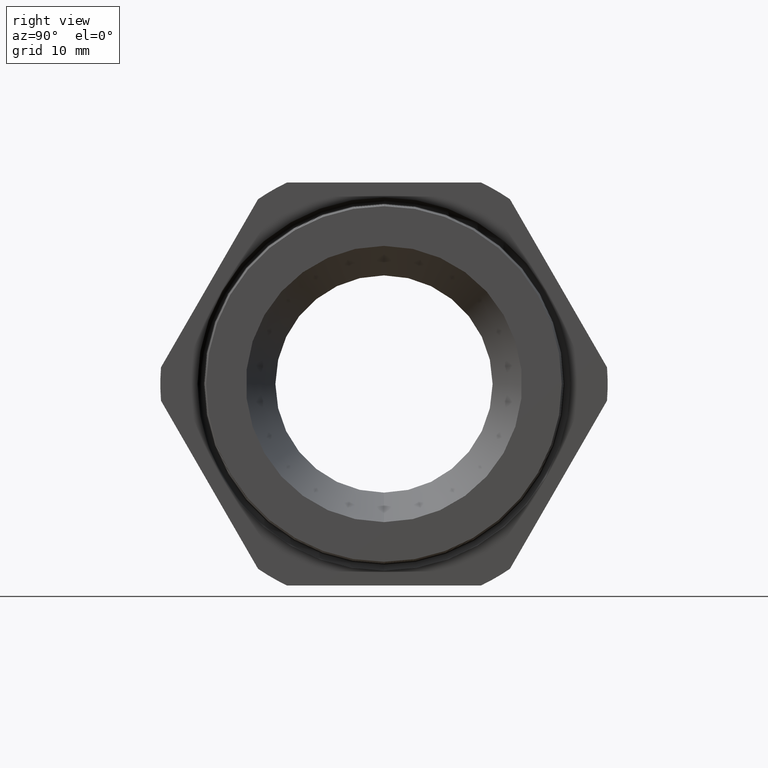
[diagram: clean part render]
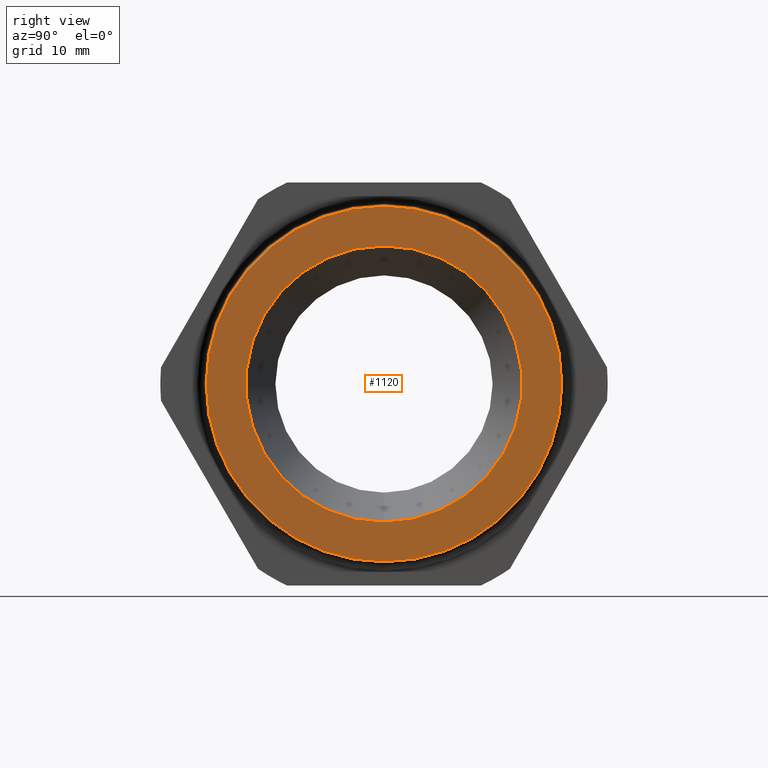
[diagram: same view with one face highlighted and labeled with its STEP entity id]
A machine part, right view. The second image highlights one B-rep face of the part: STEP entity #1120.
In plain terms, the highlighted planar face has unit normal (1, 0, 0).
Its self-contained STEP definition (entity closure, byte-faithful):
#404 = CARTESIAN_POINT ( 'NONE',  ( 0.4000000000000000200, 0.8774999999999999500, 0.0000000000000000000 ) ) ;
#657 = AXIS2_PLACEMENT_3D ( 'NONE', #404, #1235, #1661 ) ;
#1096 = EDGE_LOOP ( 'NONE', ( #1123, #1121 ) ) ;
#1100 = EDGE_CURVE ( 'NONE', #1331, #1330, #2441, .T. ) ;
#1115 = ORIENTED_EDGE ( 'NONE', *, *, #1322, .F. ) ;
#1116 = EDGE_CURVE ( 'NONE', #1323, #1256, #2478, .T. ) ;
#1118 = ORIENTED_EDGE ( 'NONE', *, *, #1116, .F. ) ;
#1119 = EDGE_LOOP ( 'NONE', ( #1118, #1115 ) ) ;
#1120 = ADVANCED_FACE ( 'NONE', ( #2470, #2469 ), #2468, .T. ) ;
#1121 = ORIENTED_EDGE ( 'NONE', *, *, #1329, .T. ) ;
#1123 = ORIENTED_EDGE ( 'NONE', *, *, #1100, .T. ) ;
#1235 = DIRECTION ( 'NONE',  ( 1.000000000000000000, 0.0000000000000000000, 0.0000000000000000000 ) ) ;
#1256 = VERTEX_POINT ( 'NONE', #2756 ) ;
#1322 = EDGE_CURVE ( 'NONE', #1256, #1323, #2887, .T. ) ;
#1323 = VERTEX_POINT ( 'NONE', #2883 ) ;
#1329 = EDGE_CURVE ( 'NONE', #1330, #1331, #2876, .T. ) ;
#1330 = VERTEX_POINT ( 'NONE', #2867 ) ;
#1331 = VERTEX_POINT ( 'NONE', #2866 ) ;
#1661 = DIRECTION ( 'NONE',  ( 0.0000000000000000000, 0.0000000000000000000, -1.000000000000000000 ) ) ;
#2437 = DIRECTION ( 'NONE',  ( 0.0000000000000000000, 0.0000000000000000000, -1.000000000000000000 ) ) ;
#2438 = DIRECTION ( 'NONE',  ( 1.000000000000000000, 0.0000000000000000000, 0.0000000000000000000 ) ) ;
#2439 = CARTESIAN_POINT ( 'NONE',  ( 0.3999999999999999700, 0.0000000000000000000, 0.0000000000000000000 ) ) ;
#2440 = AXIS2_PLACEMENT_3D ( 'NONE', #2439, #2438, #2437 ) ;
#2441 = CIRCLE ( 'NONE', #2440, 1.129426223824634400 ) ;
#2468 = PLANE ( 'NONE',  #657 ) ;
#2469 = FACE_BOUND ( 'NONE', #1119, .T. ) ;
#2470 = FACE_OUTER_BOUND ( 'NONE', #1096, .T. ) ;
#2475 = DIRECTION ( 'NONE',  ( 0.0000000000000000000, 0.0000000000000000000, -1.000000000000000000 ) ) ;
#2476 = DIRECTION ( 'NONE',  ( 1.000000000000000000, 0.0000000000000000000, 0.0000000000000000000 ) ) ;
#2477 = AXIS2_PLACEMENT_3D ( 'NONE', #2483, #2476, #2475 ) ;
#2478 = CIRCLE ( 'NONE', #2477, 0.8774999999999999500 ) ;
#2483 = CARTESIAN_POINT ( 'NONE',  ( 0.4000000000000000800, 0.0000000000000000000, 0.0000000000000000000 ) ) ;
#2756 = CARTESIAN_POINT ( 'NONE',  ( 0.4000000000000000800, 1.074627566251802300E-016, 0.8774999999999999500 ) ) ;
#2829 = CARTESIAN_POINT ( 'NONE',  ( 0.4000000000000000800, 0.0000000000000000000, 0.0000000000000000000 ) ) ;
#2866 = CARTESIAN_POINT ( 'NONE',  ( 0.3999999999999999700, 0.0000000000000000000, 1.129426223824634400 ) ) ;
#2867 = CARTESIAN_POINT ( 'NONE',  ( 0.3999999999999999700, 1.384007961136127700E-016, -1.129426223824634400 ) ) ;
#2868 = DIRECTION ( 'NONE',  ( 0.0000000000000000000, 0.0000000000000000000, -1.000000000000000000 ) ) ;
#2869 = DIRECTION ( 'NONE',  ( 1.000000000000000000, 0.0000000000000000000, 0.0000000000000000000 ) ) ;
#2870 = CARTESIAN_POINT ( 'NONE',  ( 0.3999999999999999700, 0.0000000000000000000, 0.0000000000000000000 ) ) ;
#2871 = AXIS2_PLACEMENT_3D ( 'NONE', #2870, #2869, #2868 ) ;
#2876 = CIRCLE ( 'NONE', #2871, 1.129426223824634400 ) ;
#2883 = CARTESIAN_POINT ( 'NONE',  ( 0.4000000000000000800, 0.0000000000000000000, -0.8774999999999999500 ) ) ;
#2884 = DIRECTION ( 'NONE',  ( 0.0000000000000000000, 0.0000000000000000000, -1.000000000000000000 ) ) ;
#2885 = DIRECTION ( 'NONE',  ( 1.000000000000000000, 0.0000000000000000000, 0.0000000000000000000 ) ) ;
#2886 = AXIS2_PLACEMENT_3D ( 'NONE', #2829, #2885, #2884 ) ;
#2887 = CIRCLE ( 'NONE', #2886, 0.8774999999999999500 ) ;